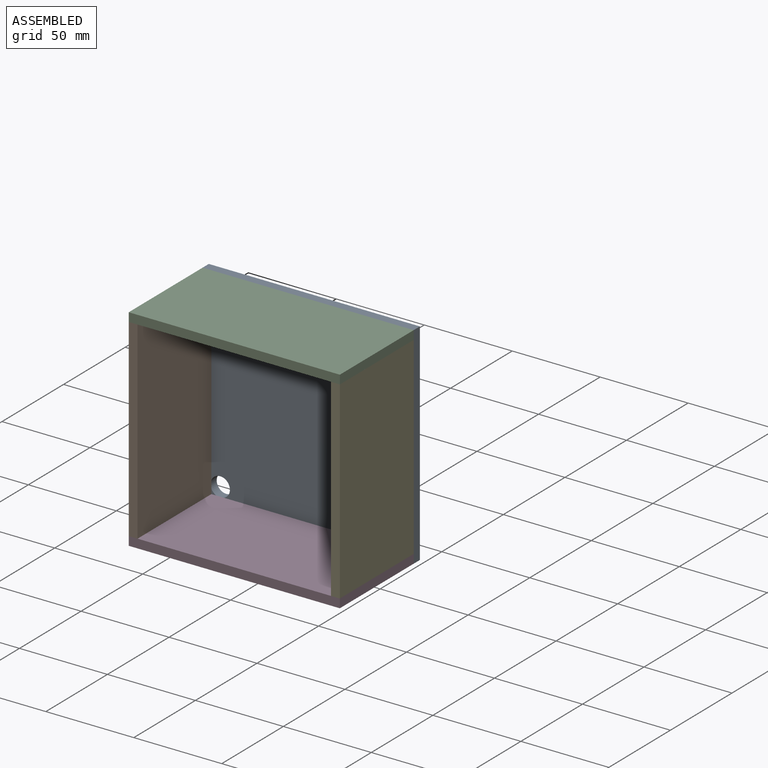
[diagram: assembled view]
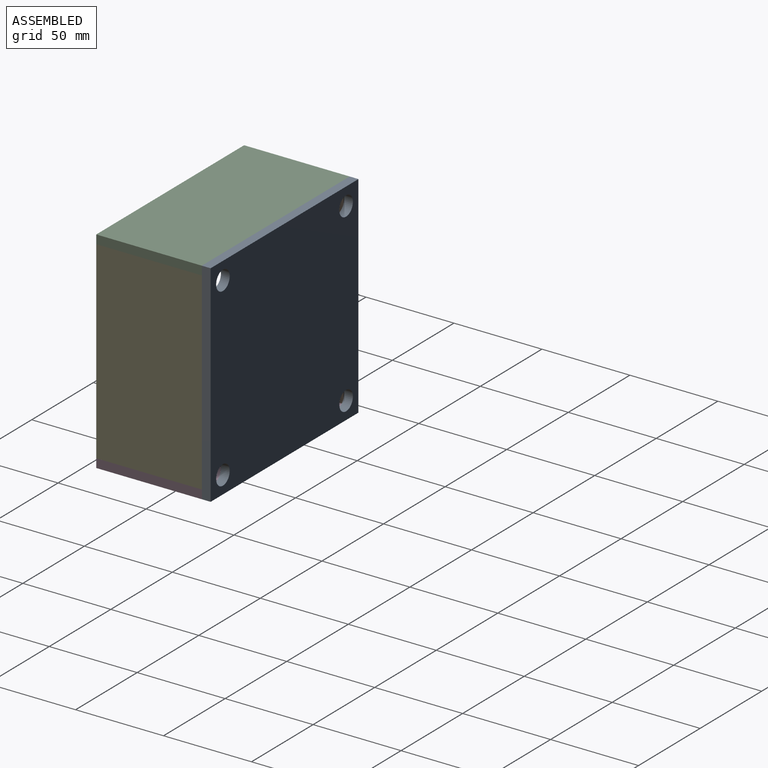
[diagram: assembled view, second angle]
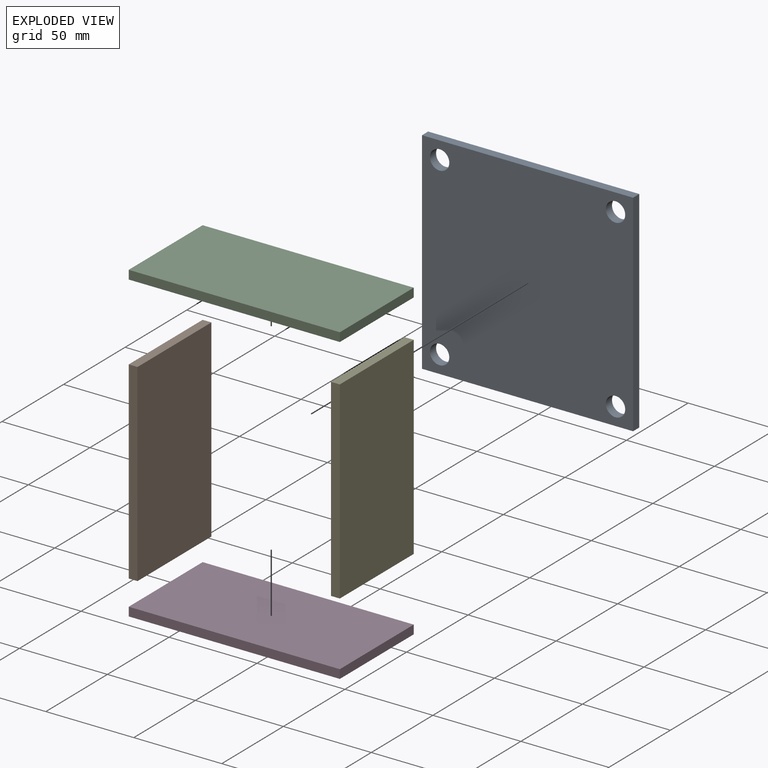
[diagram: exploded view]
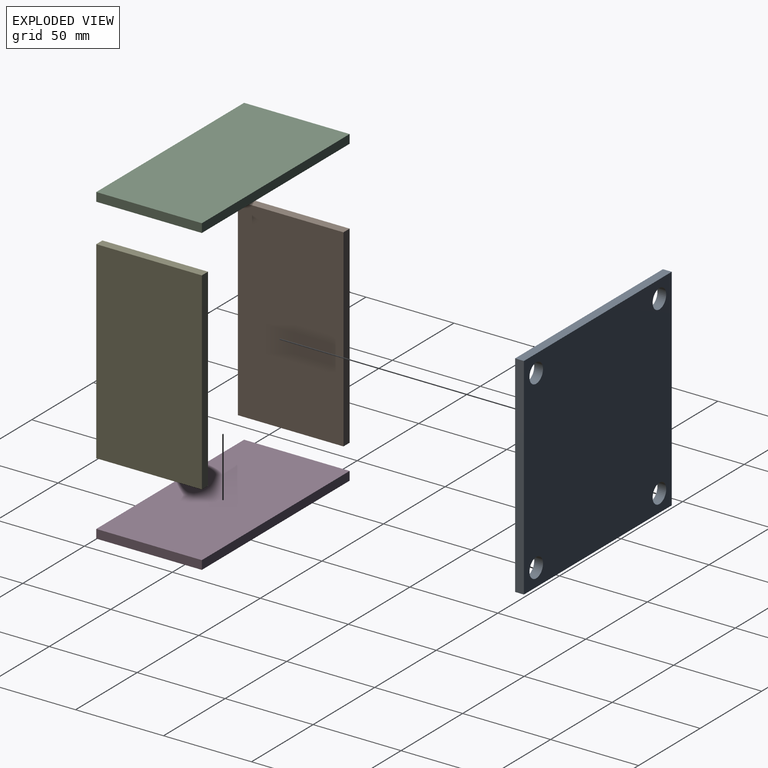
[diagram: exploded view, second angle]
ASSEMBLY  parts=5 mates=4
PART A: 10 faces, bbox 120x120x5 mm
  f0: plane 120x5mm, normal (0,-1,0), area 600mm2, adj f1,f7,f8,f9
  f1: plane 120x5mm, normal (1,0,0), area 600mm2, adj f0,f2,f8,f9
  f2: plane 120x5mm, normal (0,1,0), area 600mm2, adj f1,f7,f8,f9
  f3: cylinder r=5.5mm len=11mm, axis (0,0,-1), area 172.8mm2, adj f8,f9
  f4: cylinder r=5.5mm len=11mm, axis (0,0,-1), area 172.8mm2, adj f8,f9
  f5: cylinder r=5.5mm len=11mm, axis (0,0,-1), area 172.8mm2, adj f8,f9
  f6: cylinder r=5.5mm len=11mm, axis (0,0,-1), area 172.8mm2, adj f8,f9
  f7: plane 120x5mm, normal (-1,0,0), area 600mm2, adj f0,f2,f8,f9
  f8: plane 120x120mm, normal (0,0,1), area 14019.9mm2, adj f0,f1,f2,f3,f4,f5,f6,f7
  f9: plane 120x120mm, normal (0,0,-1), area 14019.9mm2, adj f0,f1,f2,f3,f4,f5,f6,f7
PART B: 6 faces, bbox 110x60x5 mm
  f0: plane 110x5mm, normal (0,-1,0), area 550mm2, adj f1,f3,f4,f5
  f1: plane 60x5mm, normal (1,0,0), area 300mm2, adj f0,f2,f4,f5
  f2: plane 110x5mm, normal (0,1,0), area 550mm2, adj f1,f3,f4,f5
  f3: plane 60x5mm, normal (-1,0,0), area 300mm2, adj f0,f2,f4,f5
  f4: plane 110x60mm, normal (0,0,1), area 6600mm2, adj f0,f1,f2,f3
  f5: plane 110x60mm, normal (0,0,-1), area 6600mm2, adj f0,f1,f2,f3
PART C: 6 faces, bbox 120x60x5 mm
  f0: plane 120x5mm, normal (0,-1,0), area 600mm2, adj f1,f3,f4,f5
  f1: plane 60x5mm, normal (1,0,0), area 300mm2, adj f0,f2,f4,f5
  f2: plane 120x5mm, normal (0,1,0), area 600mm2, adj f1,f3,f4,f5
  f3: plane 60x5mm, normal (-1,0,0), area 300mm2, adj f0,f2,f4,f5
  f4: plane 120x60mm, normal (0,0,1), area 7200mm2, adj f0,f1,f2,f3
  f5: plane 120x60mm, normal (0,0,-1), area 7200mm2, adj f0,f1,f2,f3
PART D: same geometry as C
PART E: same geometry as B
PLACE A rot(axis=(1,0,0),90deg) t=(-15.12,18.17,156.6)mm
PLACE B rot(axis=(0,-1,0),90deg) t=(-70.12,-16.83,156.6)mm
PLACE C rot(axis=(0,1,0),180deg) t=(-15.12,-16.83,216.6)mm
PLACE D t=(-15.12,-16.83,96.6)mm fixed
PLACE E rot(axis=(0,-1,0),90deg) t=(44.88,-16.83,156.6)mm
MATE fastened D.f4 <-> B.f3  axis (0,0,1) through (-75.12,-16.83,101.6)mm
MATE fastened E.f1 <-> C.f4  axis (0,0,1) through (44.88,-16.83,211.6)mm
MATE fastened A.f8 <-> C.f2  axis (0,-1,0) through (-15.12,13.17,216.6)mm
MATE fastened D.f4 <-> E.f3  axis (0,0,1) through (44.88,-16.83,101.6)mm
